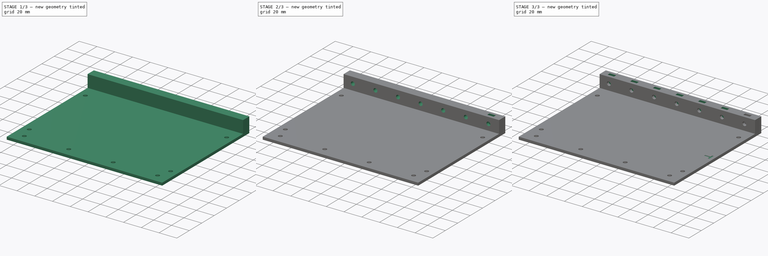
[diagram: build sequence overview — one tinted view per stage of 3, left to right]
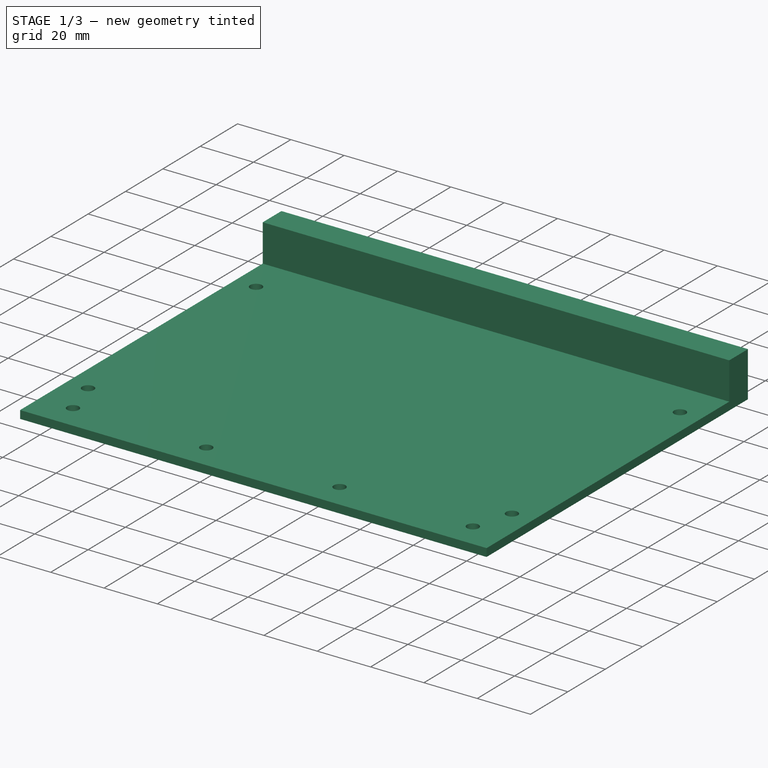
[diagram: stage 1 of 3 — iso view after this stage's code; geometry added in this stage tinted green]
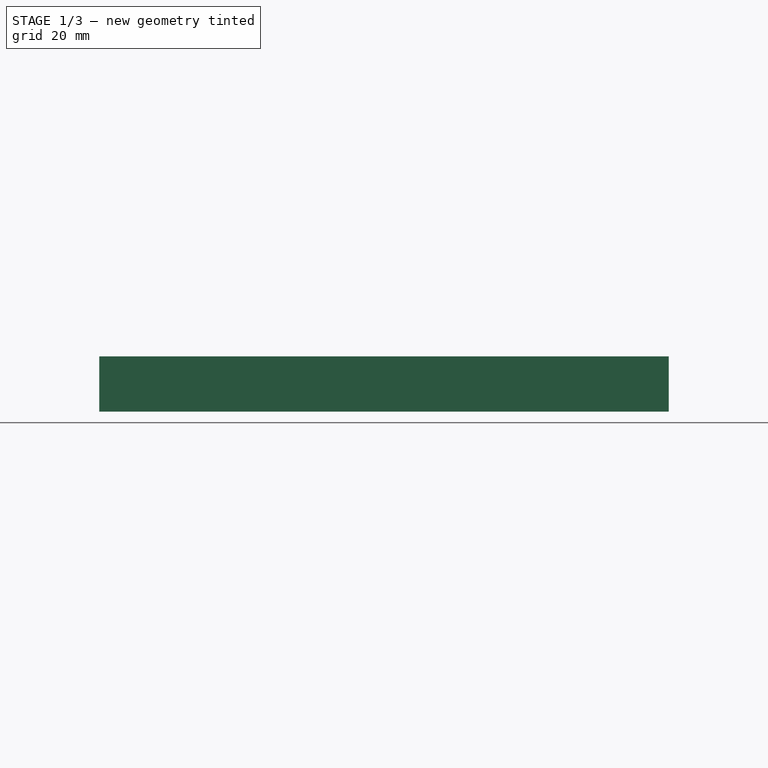
[diagram: stage 1 of 3 — front view after this stage's code; geometry added in this stage tinted green]
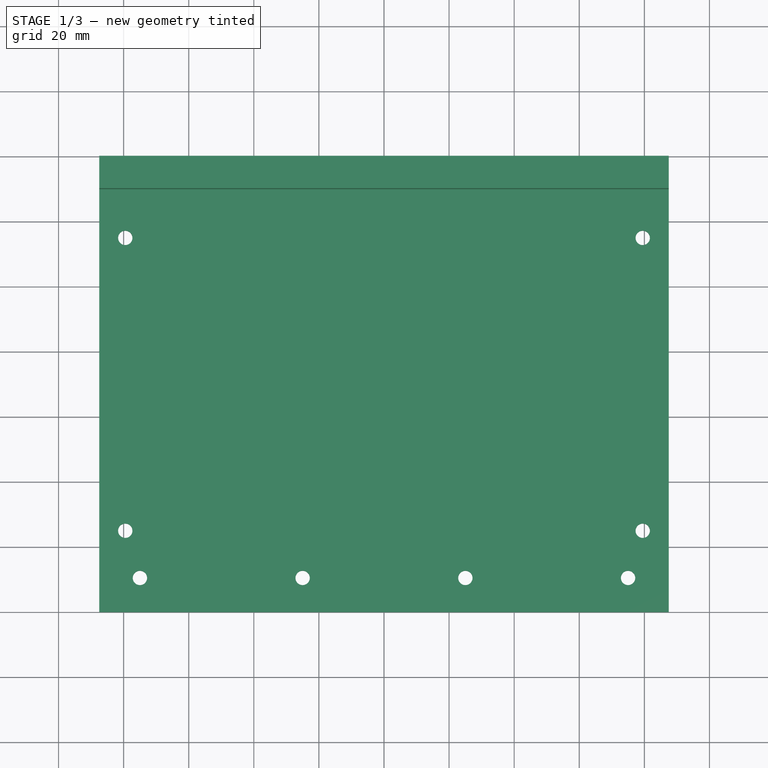
[diagram: stage 1 of 3 — top view after this stage's code; geometry added in this stage tinted green]
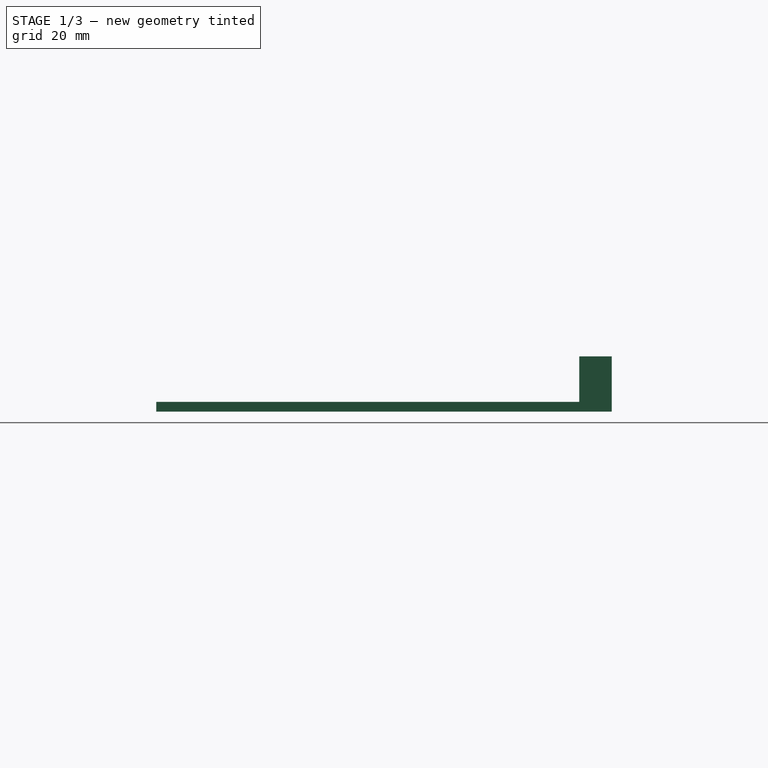
[diagram: stage 1 of 3 — right view after this stage's code; geometry added in this stage tinted green]
FCSTD DOCUMENT  (FreeCAD 0.18.1R)
Label: Sideplate
License: All rights reserved
LicenseURL: http://en.wikipedia.org/wiki/All_rights_reserved
objects: Sketcher::SketchObject×5, PartDesign::Pocket×3, PartDesign::Pad×2, Part::Feature×1, App::Part×1, PartDesign::LinearPattern×1, PartDesign::Body×1
note: 18 computed .brp shape members not serialized (recipe doc carries the construction recipe); baked Part::Feature solids carry a one-line shape summary decoded from their .brp

FEATURE [Sketcher::SketchObject] Sketch  label="Basic sideplate footprint"
  MapMode = 5
  Support = -> [XY_Plane]
  sketch-geometry (19):
    g0: LineSegment StartX=-87.5 StartY=140 StartZ=0 EndX=87.5 EndY=140 EndZ=0
    g1: LineSegment StartX=87.5 StartY=140 StartZ=0 EndX=87.5 EndY=0 EndZ=0
    g2: LineSegment StartX=87.5 StartY=0 StartZ=0 EndX=-87.5 EndY=0 EndZ=0
    g3: LineSegment StartX=-87.5 StartY=0 StartZ=0 EndX=-87.5 EndY=140 EndZ=0
    g4: Circle CenterX=-79.5 CenterY=115 CenterZ=0 NormalX=0 NormalY=0 NormalZ=1 AngleXU=0 Radius=2.2
    g5: Circle CenterX=79.5 CenterY=115 CenterZ=0 NormalX=0 NormalY=0 NormalZ=1 AngleXU=0 Radius=2.2
    g6: LineSegment [constr] StartX=-79.5 StartY=115 StartZ=0 EndX=79.5 EndY=115 EndZ=0
    g7: LineSegment [constr] StartX=79.5 StartY=115 StartZ=0 EndX=79.5 EndY=25 EndZ=0
    g8: LineSegment [constr] StartX=79.5 StartY=25 StartZ=0 EndX=-79.5 EndY=25 EndZ=0
    g9: LineSegment [constr] StartX=-79.5 StartY=25 StartZ=0 EndX=-79.5 EndY=115 EndZ=0
    g10: Circle CenterX=79.5 CenterY=25 CenterZ=0 NormalX=0 NormalY=0 NormalZ=1 AngleXU=0 Radius=2.2
    g11: Circle CenterX=-79.5 CenterY=25 CenterZ=0 NormalX=0 NormalY=0 NormalZ=1 AngleXU=0 Radius=2.2
    g12: LineSegment [constr] StartX=-75 StartY=10.5 StartZ=0 EndX=-25 EndY=10.5 EndZ=0
    g13: LineSegment [constr] StartX=-25 StartY=10.5 StartZ=0 EndX=25 EndY=10.5 EndZ=0
    g14: LineSegment [constr] StartX=25 StartY=10.5 StartZ=0 EndX=75 EndY=10.5 EndZ=0
    g15: Circle CenterX=-75 CenterY=10.5 CenterZ=0 NormalX=0 NormalY=0 NormalZ=1 AngleXU=0 Radius=2.2
    g16: Circle CenterX=-25 CenterY=10.5 CenterZ=0 NormalX=0 NormalY=0 NormalZ=1 AngleXU=0 Radius=2.2
    g17: Circle CenterX=25 CenterY=10.5 CenterZ=0 NormalX=0 NormalY=0 NormalZ=1 AngleXU=0 Radius=2.2
    g18: Circle CenterX=75 CenterY=10.5 CenterZ=0 NormalX=0 NormalY=0 NormalZ=1 AngleXU=0 Radius=2.2
  constraints (47):
    c: Coincident(g0,g1)
    c: Coincident(g1,g2)
    c: Coincident(g2,g3)
    c: Coincident(g3,g0)
    c: Horizontal(g0)
    c: Vertical(g1)
    c: Vertical(g3)
    c: Symmetric(g2,g1,g-2)
    c: Distance(g2) = 175
    c: Distance(g3) = 140
    c: PointOnObject(g2,g-1)
    c: Coincident(g6,g7)
    c: Coincident(g7,g8)
    c: Coincident(g8,g9)
    c: Coincident(g9,g6)
    c: Horizontal(g8)
    c: Vertical(g7)
    c: Vertical(g9)
    c: Coincident(g5,g6)
    c: Coincident(g4,g6)
    c: Symmetric(g4,g5,g-2)
    c: Coincident(g11,g8)
    c: Coincident(g10,g7)
    c: Radius(g10) = 2.2
    c: Equal(g10,g11)
    c: Equal(g10,g4)
    c: Equal(g10,g5)
    c: DistanceY(g4,g0) = 25
    c: DistanceY(g2,g11) = 25
    c: DistanceX(g2,g11) = 8
    c: Coincident(g12,g13)
    c: Coincident(g13,g14)
    c: Horizontal(g14)
    c: Horizontal(g12)
    c: Equal(g12,g13)
    c: Equal(g13,g14)
    c: Distance(g13) = 50
    c: Symmetric(g12,g13,g-2)
    c: DistanceY(g2,g12) = 10.5
    c: Equal(g11,g15)
    c: Equal(g15,g16)
    c: Equal(g16,g17)
    c: Equal(g17,g18)
    c: Coincident(g15,g12)
    c: Coincident(g16,g12)
    c: Coincident(g17,g13)
    c: Coincident(g18,g14)
FEATURE [PartDesign::Pad] Pad  label="Make sideplate to 3mm"
  Length = 3
  Length2 = 100
  Profile = -> Sketch
  Type = 0
FEATURE [Sketcher::SketchObject] Sketch001  label="Card mounting edge footprint"
  ExternalGeometry = -> [Pad]
  MapMode = 5
  Placement = pos=(0,0,3) rot=(0,0,1;0rad)
  Support = -> [Pad]
  sketch-geometry (4):
    g0: LineSegment StartX=-87.5 StartY=140 StartZ=0 EndX=87.5 EndY=140 EndZ=0
    g1: LineSegment StartX=87.5 StartY=140 StartZ=0 EndX=87.5 EndY=130 EndZ=0
    g2: LineSegment StartX=87.5 StartY=130 StartZ=0 EndX=-87.5 EndY=130 EndZ=0
    g3: LineSegment StartX=-87.5 StartY=130 StartZ=0 EndX=-87.5 EndY=140 EndZ=0
  constraints (10):
    c: Coincident(g0,g1)
    c: Coincident(g1,g2)
    c: Coincident(g2,g3)
    c: Coincident(g3,g0)
    c: Horizontal(g2)
    c: Vertical(g1)
    c: Vertical(g3)
    c: Distance(g1) = 10
    c: Symmetric(g0,g0,g-2)
    c: Coincident(g0,g-3)
FEATURE [PartDesign::Pad] Pad001  label="Make card mounting edge to 14mm"
  BaseFeature = -> Pad
  Length = 14
  Length2 = 100
  Profile = -> Sketch001
  Type = 0
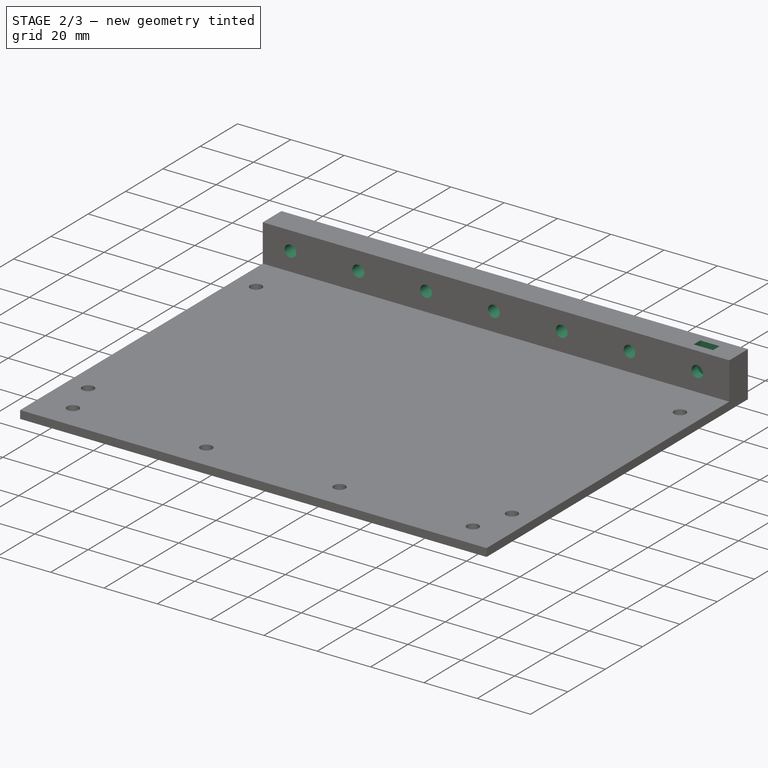
[diagram: stage 2 of 3 — iso view after this stage's code; geometry added in this stage tinted green]
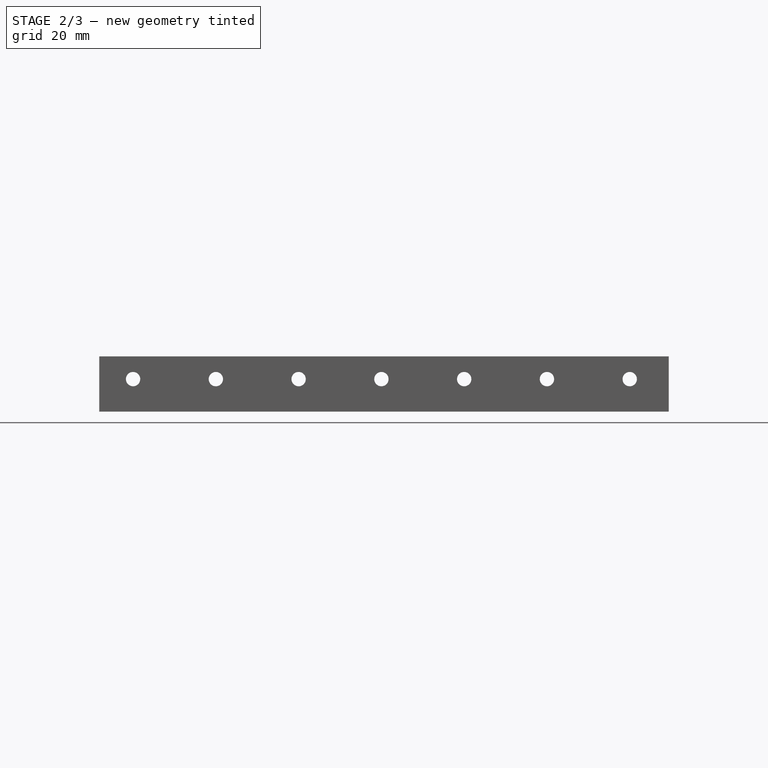
[diagram: stage 2 of 3 — front view after this stage's code; geometry added in this stage tinted green]
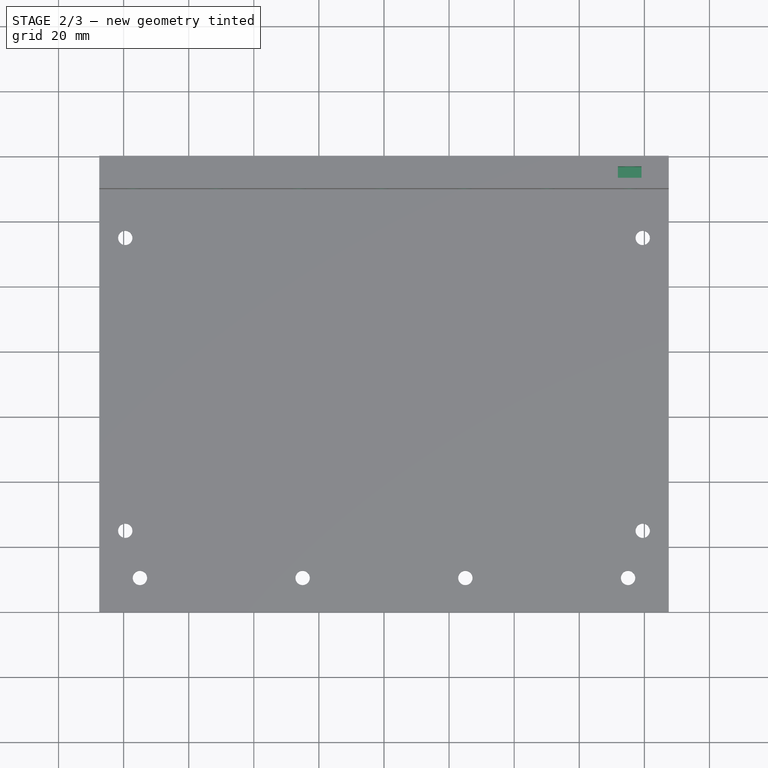
[diagram: stage 2 of 3 — top view after this stage's code; geometry added in this stage tinted green]
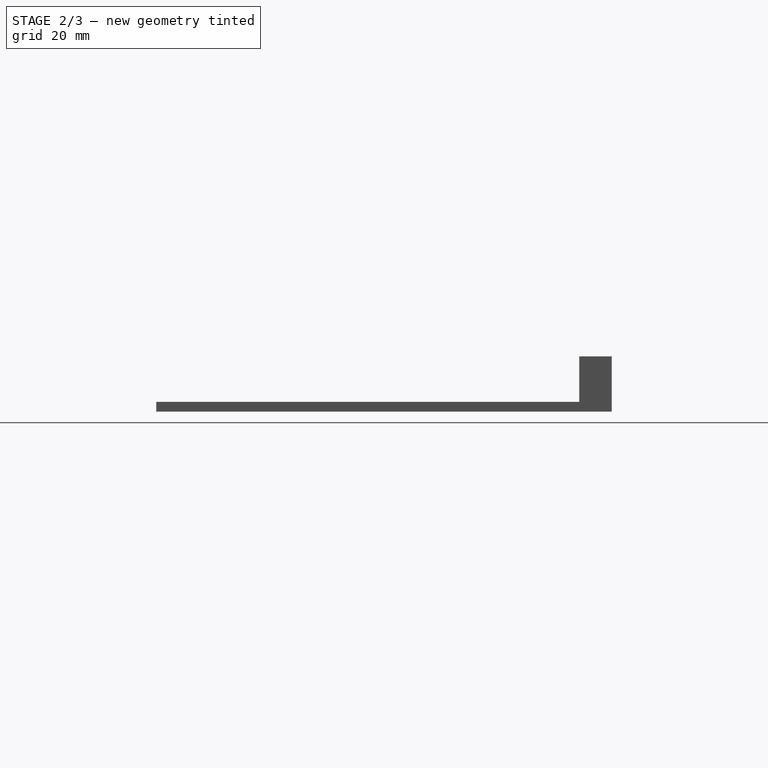
[diagram: stage 2 of 3 — right view after this stage's code; geometry added in this stage tinted green]
FEATURE [Sketcher::SketchObject] Sketch002  label="Screwhole spec for card mounting"
  ExternalGeometry = -> [Pad001]
  MapMode = 5
  Placement = pos=(0,140,0) rot=(0,0.707107,0.707107;3.14159rad)
  Support = -> [Pad001]
  sketch-geometry (14):
    g0: Circle CenterX=-75.508 CenterY=10 CenterZ=0 NormalX=0 NormalY=0 NormalZ=1 AngleXU=0 Radius=2.2
    g1: Circle CenterX=-50.072 CenterY=10 CenterZ=0 NormalX=0 NormalY=0 NormalZ=1 AngleXU=0 Radius=2.2
    g2: Circle CenterX=-24.636 CenterY=10 CenterZ=0 NormalX=0 NormalY=0 NormalZ=1 AngleXU=0 Radius=2.2
    g3: Circle CenterX=0.8 CenterY=10 CenterZ=0 NormalX=0 NormalY=0 NormalZ=1 AngleXU=0 Radius=2.2
    g4: Circle CenterX=26.236 CenterY=10 CenterZ=0 NormalX=0 NormalY=0 NormalZ=1 AngleXU=0 Radius=2.2
    g5: Circle CenterX=51.672 CenterY=10 CenterZ=0 NormalX=0 NormalY=0 NormalZ=1 AngleXU=0 Radius=2.2
    g6: Circle CenterX=77.108 CenterY=10 CenterZ=0 NormalX=0 NormalY=0 NormalZ=1 AngleXU=0 Radius=2.2
    g7: LineSegment [constr] StartX=-75.508 StartY=10 StartZ=0 EndX=-50.072 EndY=10 EndZ=0
    g8: LineSegment [constr] StartX=-50.072 StartY=10 StartZ=0 EndX=-24.636 EndY=10 EndZ=0
    g9: LineSegment [constr] StartX=-24.636 StartY=10 StartZ=0 EndX=0.8 EndY=10 EndZ=0
    g10: LineSegment [constr] StartX=0.8 StartY=10 StartZ=0 EndX=26.236 EndY=10 EndZ=0
    g11: LineSegment [constr] StartX=26.236 StartY=10 StartZ=0 EndX=51.672 EndY=10 EndZ=0
    g12: LineSegment [constr] StartX=51.672 StartY=10 StartZ=0 EndX=77.108 EndY=10 EndZ=0
    g13: LineSegment [constr] StartX=-75.508 StartY=10 StartZ=0 EndX=-87.5 EndY=10 EndZ=0
  constraints (30):
    c: Coincident(g7,g8)
    c: Coincident(g8,g9)
    c: Coincident(g9,g10)
    c: Coincident(g10,g11)
    c: Coincident(g11,g12)
    c: Coincident(g7,g0)
    c: Coincident(g1,g7)
    c: Coincident(g2,g8)
    c: Coincident(g3,g9)
    c: Coincident(g4,g10)
    c: Coincident(g5,g11)
    c: Coincident(g6,g12)
    c: Horizontal(g7)
    c: Horizontal(g8)
    c: Horizontal(g9)
    c: Horizontal(g10)
    c: Horizontal(g11)
    c: Horizontal(g12)
    c: Equal(g7,g8)
    c: Equal(g8,g9)
    c: Equal(g9,g10)
    c: Equal(g10,g11)
    c: Equal(g11,g12)
    c: Radius(g0) = 2.2
    c: Equal(g0, g1-g6) x6
    c: Distance(g12) = 25.436
    c: DistanceX(g-3,g0) = 11.992
    c: PointOnObject(g13,g-3)
    c: Coincident(g13,g0)
    c: Symmetric(g-3,g-3,g13)
FEATURE [PartDesign::Pocket] Pocket  label="Add screwholes for card mounting"
  BaseFeature = -> Pad001
  Length = 5
  Length2 = 100
  Profile = -> Sketch002
  Type = 1
FEATURE [Sketcher::SketchObject] Sketch003  label="Nut trap specification"
  ExternalGeometry = -> [Pocket]
  MapMode = 5
  Placement = pos=(0,0,17) rot=(0,0,1;0rad)
  Support = -> [Pocket]
  sketch-geometry (7):
    g0: LineSegment StartX=71.883 StartY=136.75 StartZ=0 EndX=79.133 EndY=136.75 EndZ=0
    g1: LineSegment StartX=79.133 StartY=136.75 StartZ=0 EndX=79.133 EndY=133.25 EndZ=0
    g2: LineSegment StartX=79.133 StartY=133.25 StartZ=0 EndX=71.883 EndY=133.25 EndZ=0
    g3: LineSegment StartX=71.883 StartY=133.25 StartZ=0 EndX=71.883 EndY=136.75 EndZ=0
    g4: LineSegment [constr] StartX=71.883 StartY=136.75 StartZ=0 EndX=79.133 EndY=133.25 EndZ=0
    g5: LineSegment [constr] StartX=79.133 StartY=136.75 StartZ=0 EndX=71.883 EndY=133.25 EndZ=0
    g6: LineSegment [constr] StartX=75.508 StartY=135 StartZ=0 EndX=87.5 EndY=135 EndZ=0
  constraints (19):
    c: Coincident(g0,g1)
    c: Coincident(g1,g2)
    c: Coincident(g2,g3)
    c: Coincident(g3,g0)
    c: Horizontal(g0)
    c: Horizontal(g2)
    c: Vertical(g1)
    c: Vertical(g3)
    c: Distance(g1) = 3.5
    c: Distance(g2) = 7.25
    c: Coincident(g0,g4)
    c: Coincident(g4,g1)
    c: Coincident(g5,g0)
    c: Coincident(g5,g2)
    c: PointOnObject(g6,g-3)
    c: PointOnObject(g6,g4)
    c: PointOnObject(g6,g5)
    c: Distance(g6) = 11.992
    c: Symmetric(g-3,g-3,g6)
FEATURE [PartDesign::Pocket] Pocket001  label="Add nut trap to just 11.2 depth"
  BaseFeature = -> Pocket
  Length = 11.2
  Length2 = 100
  Profile = -> Sketch003
  Type = 0
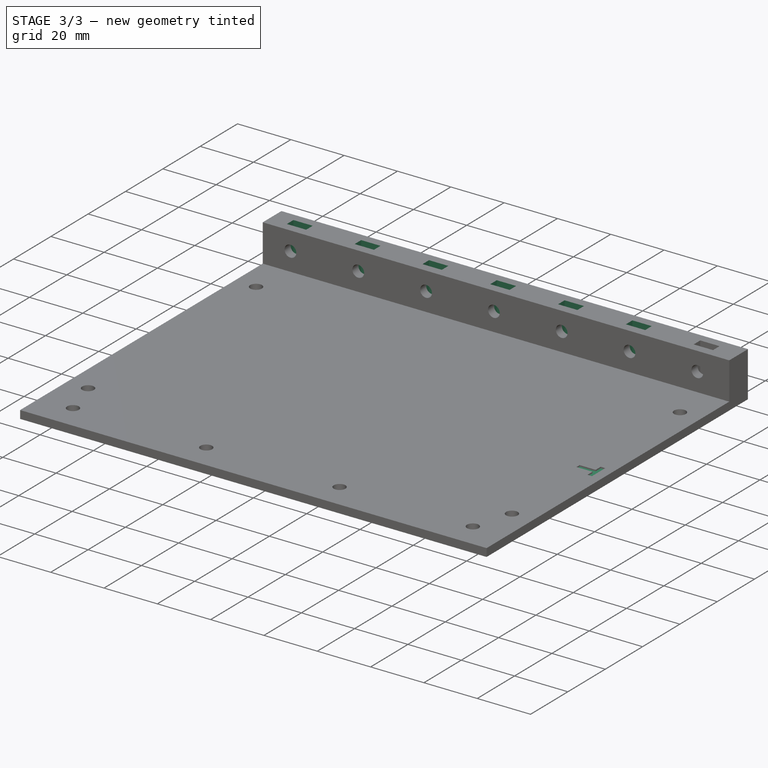
[diagram: stage 3 of 3 — iso view after this stage's code; geometry added in this stage tinted green]
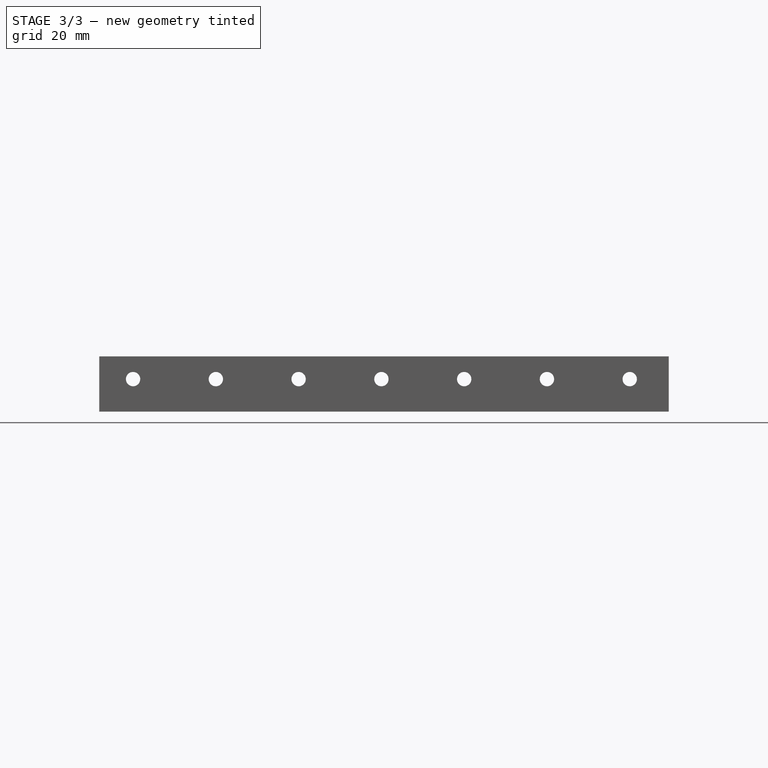
[diagram: stage 3 of 3 — front view after this stage's code; geometry added in this stage tinted green]
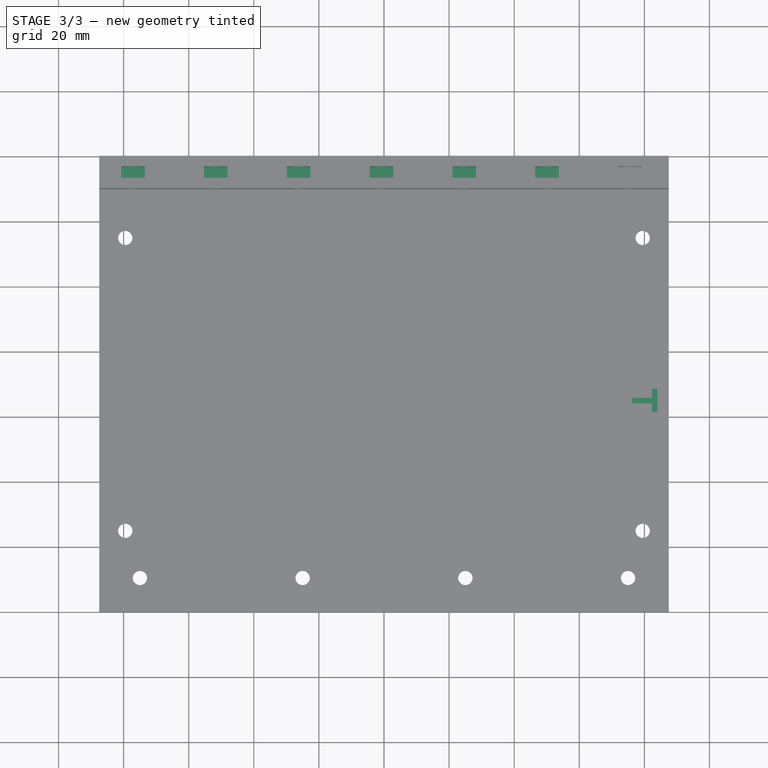
[diagram: stage 3 of 3 — top view after this stage's code; geometry added in this stage tinted green]
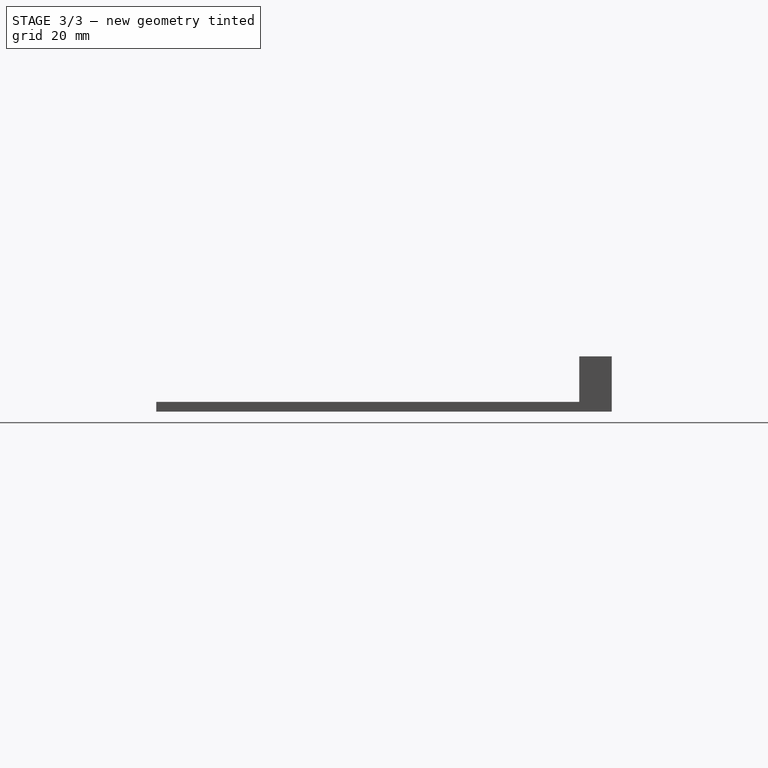
[diagram: stage 3 of 3 — right view after this stage's code; geometry added in this stage tinted green]
FEATURE [Part::Feature] Part__Feature  label="M4 Nut"
  Placement = pos=(75.5,135,10) rot=(1,0,0;0rad)
  shape: bbox 7.66 x 3.2 x 7.66 mm, 19 faces (baked)
FEATURE [App::Part] ASSEMBLY  label="Components"
  Group = -> [Part__Feature]
  Origin = -> Origin001
FEATURE [PartDesign::LinearPattern] LinearPattern  label="Add remaining nut-traps"
  BaseFeature = -> Pocket001
  Direction = -> Sketch003 [H_Axis]
  Length = 152.616
  Occurrences = 7
  Originals = -> [Pocket001]
  Reversed = true
FEATURE [Sketcher::SketchObject] Sketch004  label="Orientation mark"
  ExternalGeometry = -> [LinearPattern]
  MapMode = 5
  Placement = pos=(0,0,3) rot=(0,0,1;0rad)
  Support = -> [LinearPattern]
  sketch-geometry (9):
    g0: LineSegment StartX=84 StartY=68.55 StartZ=0 EndX=84 EndY=61.45 EndZ=0
    g1: LineSegment StartX=84 StartY=61.45 StartZ=0 EndX=82.3 EndY=61.45 EndZ=0
    g2: LineSegment StartX=82.3 StartY=61.45 StartZ=0 EndX=82.3 EndY=64.15 EndZ=0
    g3: LineSegment StartX=82.3 StartY=64.15 StartZ=0 EndX=76.3 EndY=64.15 EndZ=0
    g4: LineSegment StartX=76.3 StartY=64.15 StartZ=0 EndX=76.3 EndY=65.85 EndZ=0
    g5: LineSegment StartX=76.3 StartY=65.85 StartZ=0 EndX=82.3 EndY=65.85 EndZ=0
    g6: LineSegment StartX=82.3 StartY=65.85 StartZ=0 EndX=82.3 EndY=68.55 EndZ=0
    g7: LineSegment StartX=82.3 StartY=68.55 StartZ=0 EndX=84 EndY=68.55 EndZ=0
    g8: LineSegment [constr] StartX=84 StartY=65 StartZ=0 EndX=87.5 EndY=65 EndZ=0
  constraints (26):
    c: Coincident(g0,g1)
    c: Coincident(g1,g2)
    c: Coincident(g2,g3)
    c: Coincident(g3,g4)
    c: Coincident(g4,g5)
    c: Coincident(g5,g6)
    c: Coincident(g6,g7)
    c: Coincident(g0,g7)
    c: Horizontal(g1)
    c: Horizontal(g5)
    c: Horizontal(g7)
    c: Vertical(g6)
    c: Vertical(g4)
    c: Vertical(g2)
    c: Horizontal(g3)
    c: Equal(g1,g4)
    c: Equal(g4,g7)
    c: Distance(g7) = 1.7
    c: Equal(g6,g2)
    c: Distance(g6) = 2.7
    c: Distance(g5) = 6
    c: PointOnObject(g8,g-3)
    c: PointOnObject(g8,g0)
    c: Symmetric(g0,g0,g8)
    c: Symmetric(g-3,g-3,g8)
    c: Distance(g8) = 3.5
FEATURE [PartDesign::Pocket] Pocket002  label="Add orientation mark"
  BaseFeature = -> LinearPattern
  Length = 0.5
  Length2 = 100
  Profile = -> Sketch004
  Type = 0
FEATURE [PartDesign::Body] Body
  Group = -> [Sketch,Pad,Sketch001,Pad001,Sketch002,Pocket,Sketch003,Pocket001,LinearPattern,Sketch004,Pocket002]
  Origin = -> Origin
  Tip = -> Pocket002
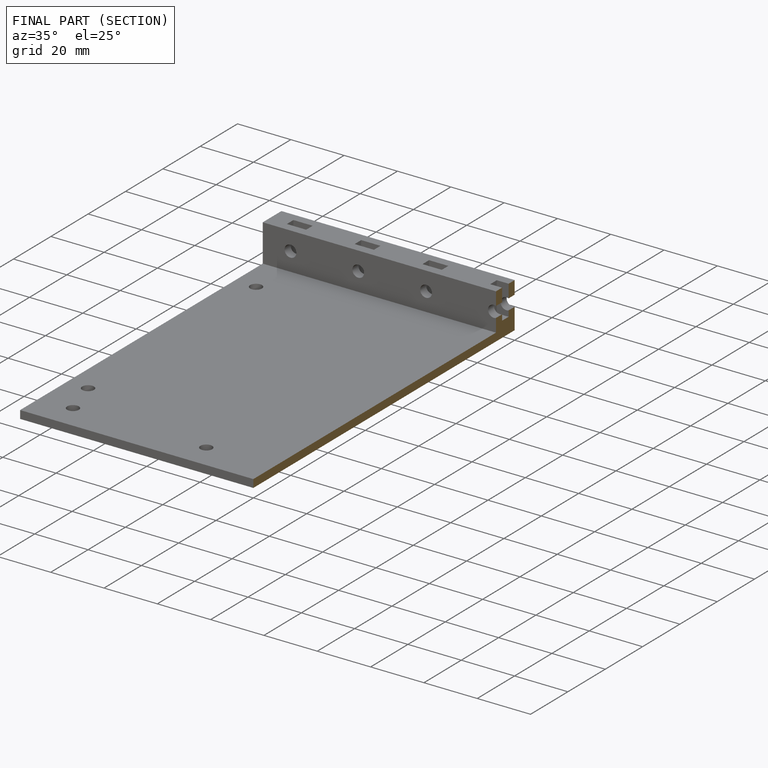
[diagram: finished part — half-section view (interior)]
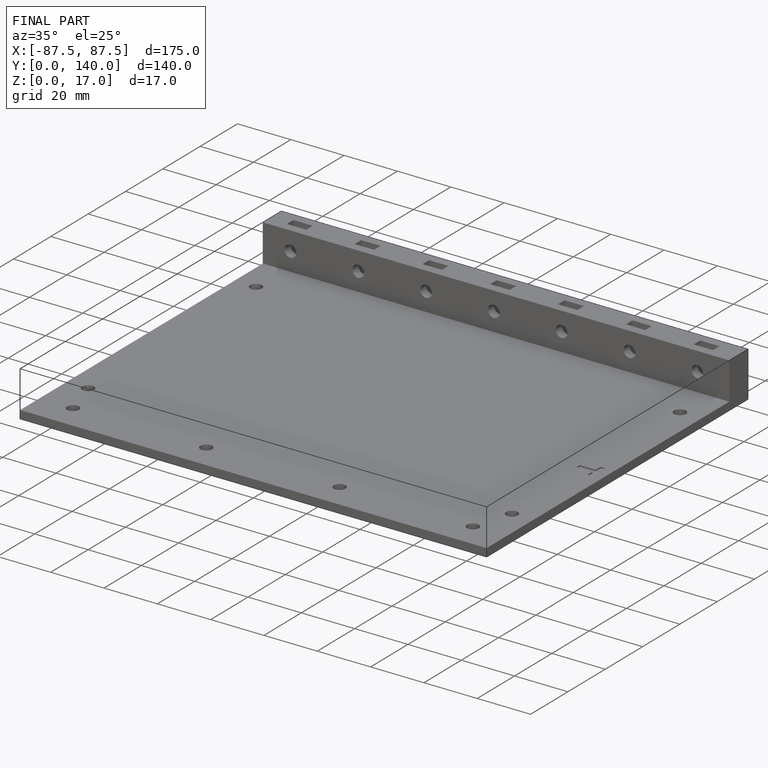
[diagram: finished part — iso view with bounding-box wireframe]
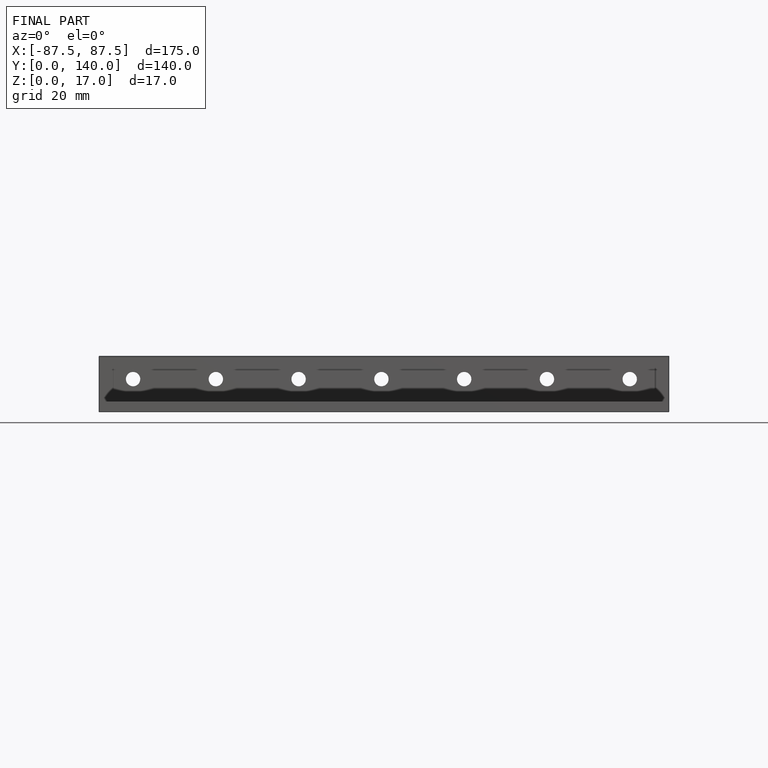
[diagram: finished part — front view with bounding-box wireframe]
